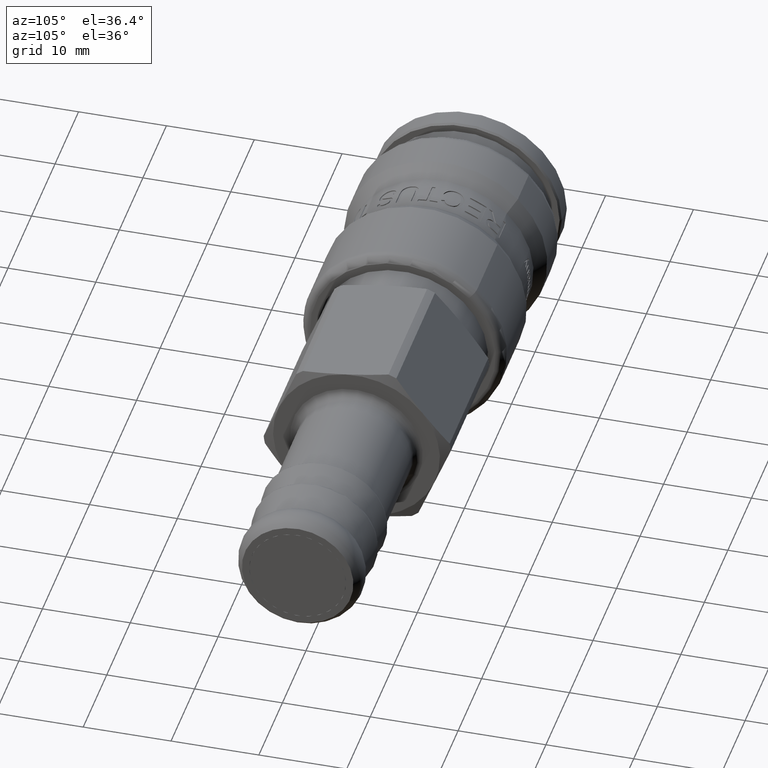
[diagram: clean part render]
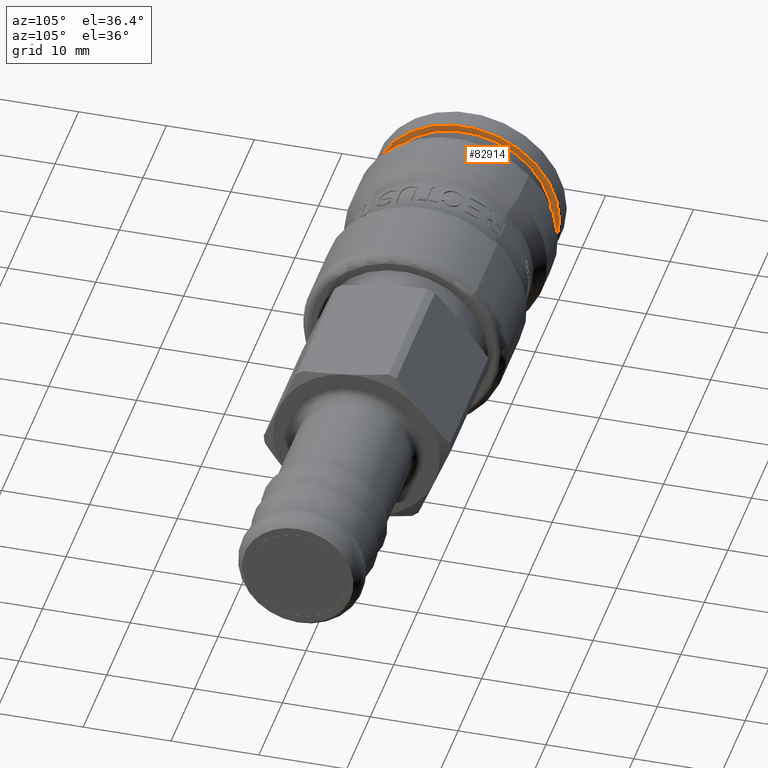
[diagram: same view with one face highlighted and labeled with its STEP entity id]
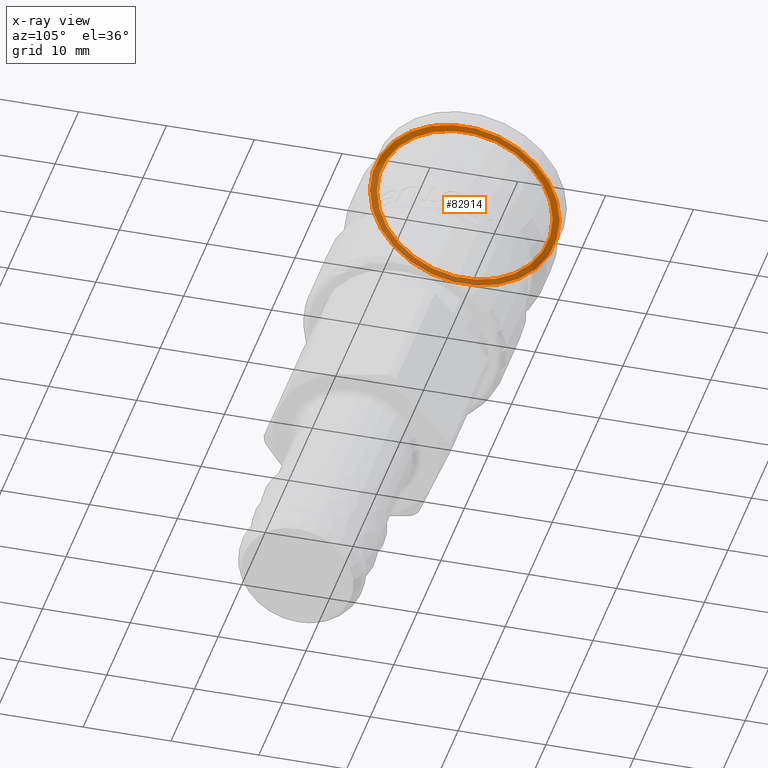
[diagram: x-ray of the same camera — body ghosted, the highlighted face saturated]
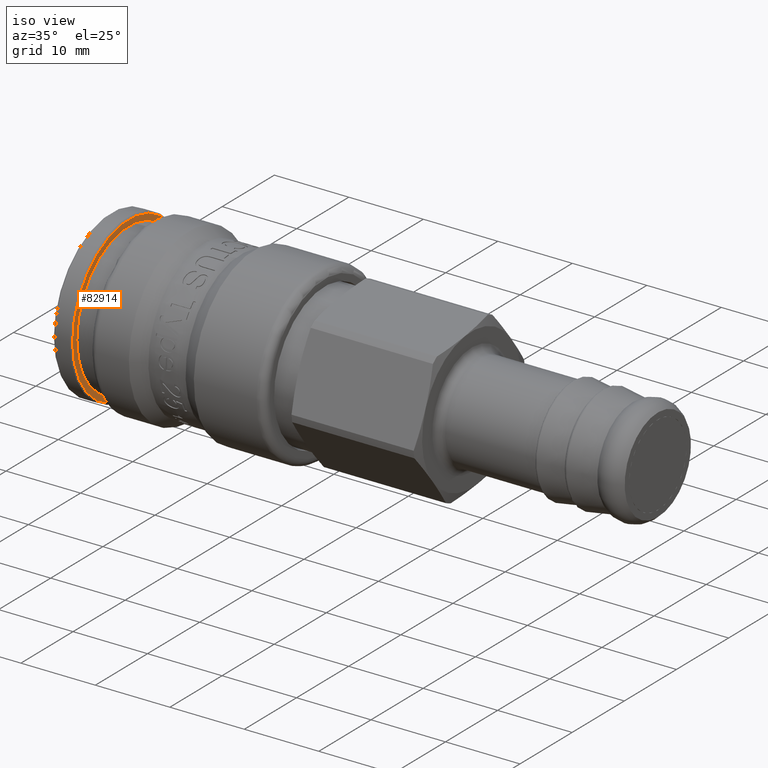
[diagram: same view with one face highlighted and labeled with its STEP entity id]
A machine part, auxiliary view. The second image highlights one B-rep face of the part: STEP entity #82914.
The next image is the same camera in x-ray: the body ghosted, the highlighted face saturated — about 51% of this face is hidden behind the body in this view.
A second angle (iso view) of the same face is appended — the face is thin or edge-on in the first view.
In plain terms, the highlighted planar face has unit normal (1, 0, 0).
Its self-contained STEP definition (entity closure, byte-faithful):
#82863=CARTESIAN_POINT('',(2.499999999999999,10.800000000000001,-1.322619E-015));
#82864=VERTEX_POINT('',#82863);
#82865=CARTESIAN_POINT('',(2.499999999999999,0.0,0.0));
#82866=DIRECTION('',(-1.0,0.0,0.0));
#82867=DIRECTION('',(0.0,-1.0,0.0));
#82868=AXIS2_PLACEMENT_3D('',#82865,#82866,#82867);
#82869=CIRCLE('',#82868,10.800000000000001);
#82870=EDGE_CURVE('',#82864,#82864,#82869,.T.);
#82895=CARTESIAN_POINT('',(2.499999999999999,10.5,0.0));
#82896=DIRECTION('',(1.0,0.0,0.0));
#82897=DIRECTION('',(0.0,0.0,-1.0));
#82898=AXIS2_PLACEMENT_3D('',#82895,#82896,#82897);
#82899=PLANE('',#82898);
#82900=ORIENTED_EDGE('',*,*,#82870,.F.);
#82901=EDGE_LOOP('',(#82900));
#82902=FACE_OUTER_BOUND('',#82901,.T.);
#82903=CARTESIAN_POINT('',(2.499999999999999,10.0,0.0));
#82904=VERTEX_POINT('',#82903);
#82905=CARTESIAN_POINT('',(2.499999999999999,0.0,0.0));
#82906=DIRECTION('',(1.0,0.0,0.0));
#82907=DIRECTION('',(0.0,1.0,0.0));
#82908=AXIS2_PLACEMENT_3D('',#82905,#82906,#82907);
#82909=CIRCLE('',#82908,10.0);
#82910=EDGE_CURVE('',#82904,#82904,#82909,.T.);
#82911=ORIENTED_EDGE('',*,*,#82910,.F.);
#82912=EDGE_LOOP('',(#82911));
#82913=FACE_BOUND('',#82912,.T.);
#82914=ADVANCED_FACE('',(#82902,#82913),#82899,.T.);